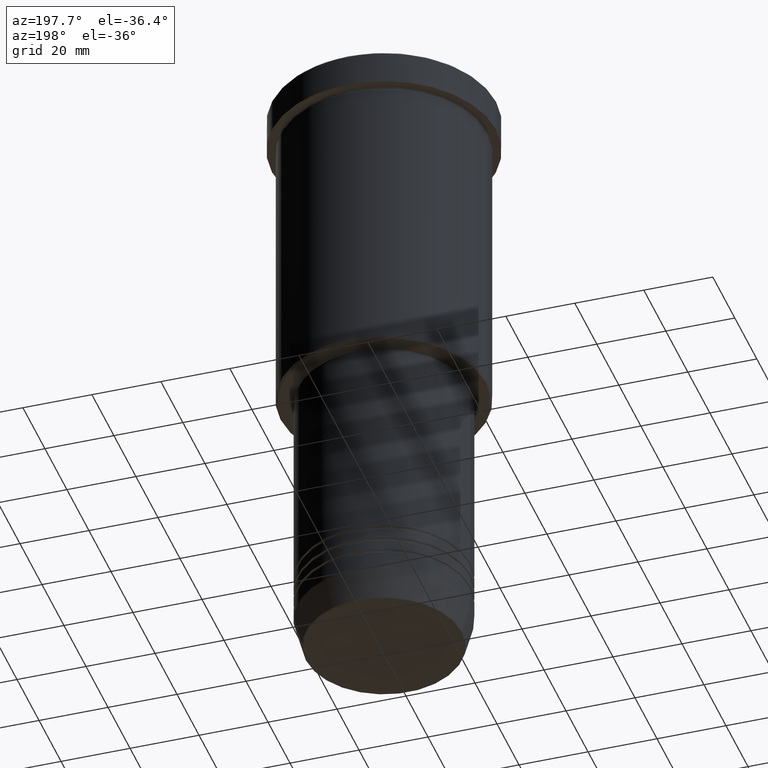
[diagram: clean part render]
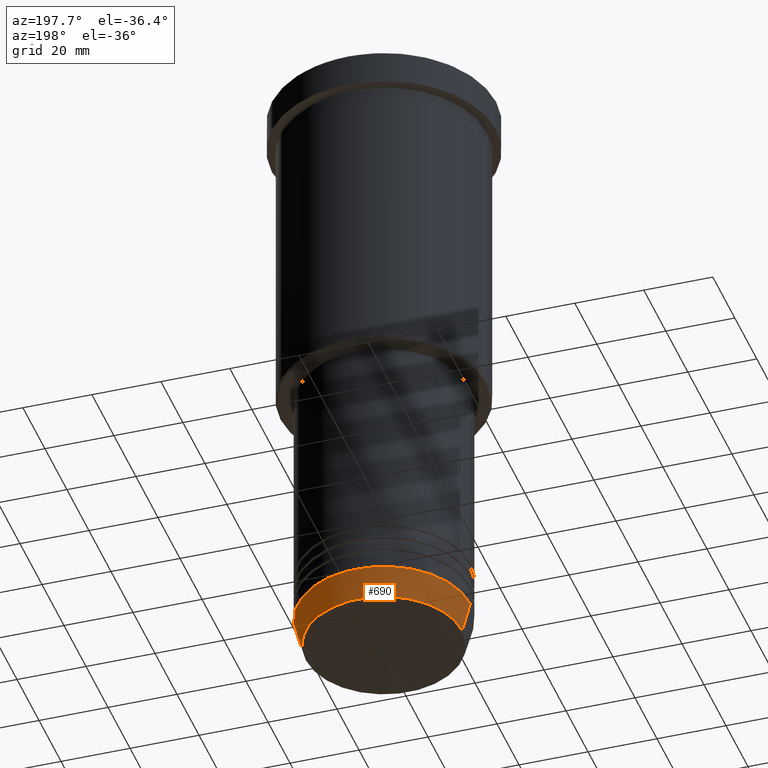
[diagram: same view with one face highlighted and labeled with its STEP entity id]
A machine part, auxiliary view. The second image highlights one B-rep face of the part: STEP entity #690.
In plain terms, the highlighted conical surface has half-angle 15 deg.
Its self-contained STEP definition (entity closure, byte-faithful):
#11 = CARTESIAN_POINT ( 'NONE',  ( 25.00000000000000000, 0.000000000000000000, -171.0000000000000000 ) ) ;
#45 = VERTEX_POINT ( 'NONE', #753 ) ;
#55 = CARTESIAN_POINT ( 'NONE',  ( 0.000000000000000000, 0.000000000000000000, -171.0000000000000000 ) ) ;
#72 = VERTEX_POINT ( 'NONE', #691 ) ;
#84 = CIRCLE ( 'NONE', #229, 25.00000000000000000 ) ;
#88 = VECTOR ( 'NONE', #677, 1000.000000000000114 ) ;
#99 = CARTESIAN_POINT ( 'NONE',  ( -25.00000000000000000, 3.061616997868383043E-15, -171.0000000000000000 ) ) ;
#146 = EDGE_CURVE ( 'NONE', #218, #45, #430, .T. ) ;
#157 = ORIENTED_EDGE ( 'NONE', *, *, #257, .F. ) ;
#204 = AXIS2_PLACEMENT_3D ( 'NONE', #952, #845, #865 ) ;
#218 = VERTEX_POINT ( 'NONE', #895 ) ;
#229 = AXIS2_PLACEMENT_3D ( 'NONE', #55, #872, #1070 ) ;
#250 = VECTOR ( 'NONE', #478, 1000.000000000000114 ) ;
#257 = EDGE_CURVE ( 'NONE', #72, #377, #84, .T. ) ;
#315 = CARTESIAN_POINT ( 'NONE',  ( -25.00000000000000000, 3.061616997868383043E-15, -171.0000000000000000 ) ) ;
#377 = VERTEX_POINT ( 'NONE', #99 ) ;
#390 = ORIENTED_EDGE ( 'NONE', *, *, #1156, .F. ) ;
#397 = EDGE_LOOP ( 'NONE', ( #627, #515, #157, #390 ) ) ;
#403 = FACE_OUTER_BOUND ( 'NONE', #397, .T. ) ;
#430 = CIRCLE ( 'NONE', #204, 22.68775668727495187 ) ;
#432 = CONICAL_SURFACE ( 'NONE', #626, 25.00000000000000000, 0.2617993877991499629 ) ;
#473 = LINE ( 'NONE', #11, #250 ) ;
#478 = DIRECTION ( 'NONE',  ( 0.2588190451025212391, 0.000000000000000000, 0.9659258262890680902 ) ) ;
#515 = ORIENTED_EDGE ( 'NONE', *, *, #1084, .T. ) ;
#626 = AXIS2_PLACEMENT_3D ( 'NONE', #876, #674, #1145 ) ;
#627 = ORIENTED_EDGE ( 'NONE', *, *, #146, .T. ) ;
#674 = DIRECTION ( 'NONE',  ( -0.000000000000000000, -0.000000000000000000, 1.000000000000000000 ) ) ;
#677 = DIRECTION ( 'NONE',  ( -0.2588190451025212391, 3.169619151431771721E-17, 0.9659258262890680902 ) ) ;
#690 = ADVANCED_FACE ( 'NONE', ( #403 ), #432, .T. ) ;
#691 = CARTESIAN_POINT ( 'NONE',  ( 25.00000000000000000, 0.000000000000000000, -171.0000000000000000 ) ) ;
#753 = CARTESIAN_POINT ( 'NONE',  ( -22.68775668727495187, 2.920032929279453370E-15, -179.6294095225512706 ) ) ;
#845 = DIRECTION ( 'NONE',  ( -0.000000000000000000, -0.000000000000000000, 1.000000000000000000 ) ) ;
#865 = DIRECTION ( 'NONE',  ( 1.000000000000000000, 0.000000000000000000, 0.000000000000000000 ) ) ;
#872 = DIRECTION ( 'NONE',  ( -0.000000000000000000, -0.000000000000000000, 1.000000000000000000 ) ) ;
#876 = CARTESIAN_POINT ( 'NONE',  ( 0.000000000000000000, 0.000000000000000000, -171.0000000000000000 ) ) ;
#895 = CARTESIAN_POINT ( 'NONE',  ( 22.68775668727495187, 0.000000000000000000, -179.6294095225512706 ) ) ;
#941 = LINE ( 'NONE', #315, #88 ) ;
#952 = CARTESIAN_POINT ( 'NONE',  ( 0.000000000000000000, 0.000000000000000000, -179.6294095225512706 ) ) ;
#1070 = DIRECTION ( 'NONE',  ( 1.000000000000000000, 0.000000000000000000, 0.000000000000000000 ) ) ;
#1084 = EDGE_CURVE ( 'NONE', #45, #377, #941, .T. ) ;
#1145 = DIRECTION ( 'NONE',  ( 1.000000000000000000, 0.000000000000000000, 0.000000000000000000 ) ) ;
#1156 = EDGE_CURVE ( 'NONE', #218, #72, #473, .T. ) ;